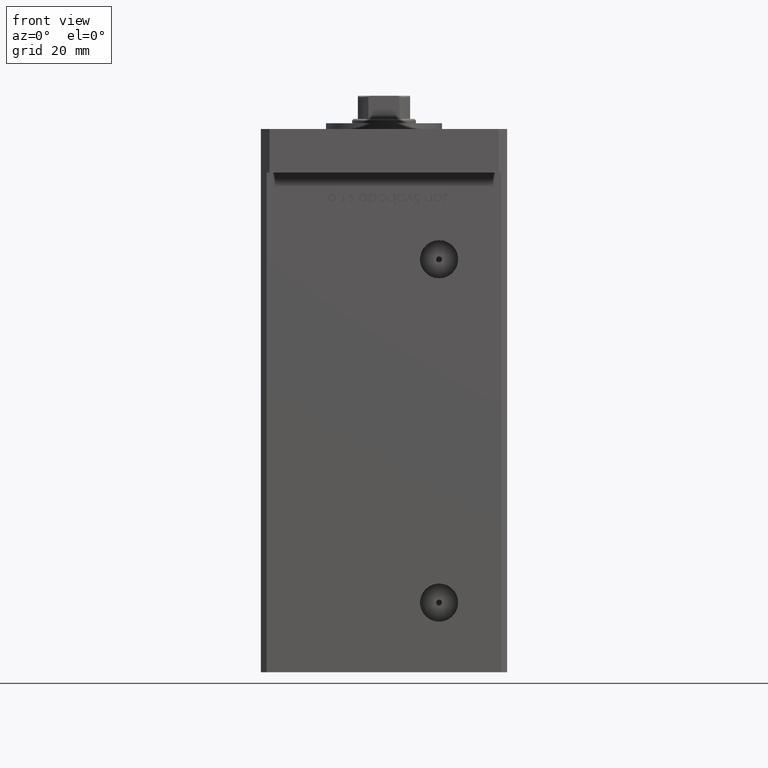
[diagram: clean part render]
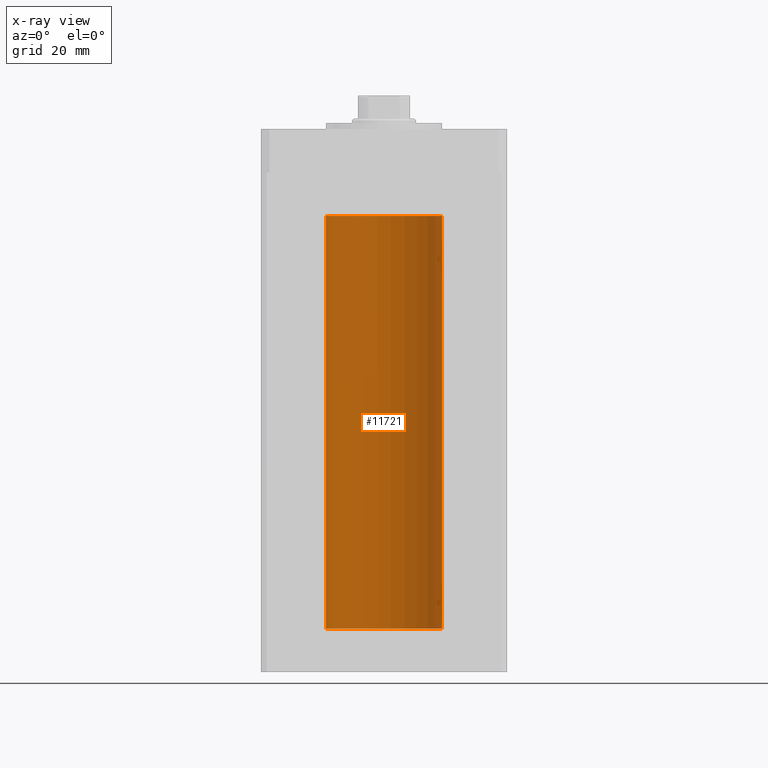
[diagram: x-ray — body ghosted, one internal face saturated and labeled with its STEP entity id]
A machine part, front view, then the same camera in x-ray: the body is ghosted and one INTERNAL B-rep face — a face not visible from any outside direction — is saturated and labeled: STEP entity #11721.
In plain terms, the highlighted cylindrical surface (partial cylindrical patch) has radius 20 mm, axis along (-0, -0, -1).
Its self-contained STEP definition (entity closure, byte-faithful):
#1046 = VECTOR ( 'NONE', #6329, 1000.000000000000000 ) ;
#1354 = FACE_OUTER_BOUND ( 'NONE', #46314, .T. ) ;
#4432 = EDGE_CURVE ( 'NONE', #5984, #25182, #39133, .T. ) ;
#5270 = CARTESIAN_POINT ( 'NONE',  ( 0.000000000000000000, 0.000000000000000000, 142.5000000000000000 ) ) ;
#5538 = DIRECTION ( 'NONE',  ( -0.000000000000000000, 0.000000000000000000, 1.000000000000000000 ) ) ;
#5984 = VERTEX_POINT ( 'NONE', #11872 ) ;
#6329 = DIRECTION ( 'NONE',  ( -0.000000000000000000, -0.000000000000000000, -1.000000000000000000 ) ) ;
#6396 = EDGE_CURVE ( 'NONE', #43133, #51250, #33474, .T. ) ;
#7317 = AXIS2_PLACEMENT_3D ( 'NONE', #14567, #10483, #33874 ) ;
#9122 = EDGE_CURVE ( 'NONE', #51250, #25182, #46217, .T. ) ;
#9600 = DIRECTION ( 'NONE',  ( 1.000000000000000000, 0.000000000000000000, 0.000000000000000000 ) ) ;
#10483 = DIRECTION ( 'NONE',  ( -0.000000000000000000, -0.000000000000000000, -1.000000000000000000 ) ) ;
#11721 = ADVANCED_FACE ( 'NONE', ( #1354 ), #31347, .F. ) ;
#11872 = CARTESIAN_POINT ( 'NONE',  ( -20.00000000000000000, 0.000000000000000000, 142.5000000000000000 ) ) ;
#11927 = ORIENTED_EDGE ( 'NONE', *, *, #4432, .T. ) ;
#12652 = CARTESIAN_POINT ( 'NONE',  ( 20.00000000000000000, 2.449293598294706513E-15, 142.5000000000000000 ) ) ;
#12889 = DIRECTION ( 'NONE',  ( -0.000000000000000000, -0.000000000000000000, -1.000000000000000000 ) ) ;
#14567 = CARTESIAN_POINT ( 'NONE',  ( 0.000000000000000000, 0.000000000000000000, 142.5000000000000000 ) ) ;
#16826 = DIRECTION ( 'NONE',  ( 1.000000000000000000, 0.000000000000000000, 0.000000000000000000 ) ) ;
#21564 = AXIS2_PLACEMENT_3D ( 'NONE', #5270, #5538, #9600 ) ;
#23365 = CARTESIAN_POINT ( 'NONE',  ( 20.00000000000000000, 2.449293598294706513E-15, 0.000000000000000000 ) ) ;
#24707 = DIRECTION ( 'NONE',  ( -0.000000000000000000, 0.000000000000000000, 1.000000000000000000 ) ) ;
#25182 = VERTEX_POINT ( 'NONE', #43816 ) ;
#27108 = VECTOR ( 'NONE', #12889, 1000.000000000000000 ) ;
#31347 = CYLINDRICAL_SURFACE ( 'NONE', #7317, 20.00000000000000000 ) ;
#32549 = CARTESIAN_POINT ( 'NONE',  ( 0.000000000000000000, 0.000000000000000000, 0.000000000000000000 ) ) ;
#33474 = LINE ( 'NONE', #42154, #27108 ) ;
#33709 = EDGE_CURVE ( 'NONE', #43133, #5984, #44917, .T. ) ;
#33874 = DIRECTION ( 'NONE',  ( -1.000000000000000000, 0.000000000000000000, 0.000000000000000000 ) ) ;
#34154 = ORIENTED_EDGE ( 'NONE', *, *, #33709, .T. ) ;
#34520 = CARTESIAN_POINT ( 'NONE',  ( -20.00000000000000000, 0.000000000000000000, 142.5000000000000000 ) ) ;
#39133 = LINE ( 'NONE', #34520, #1046 ) ;
#42154 = CARTESIAN_POINT ( 'NONE',  ( 20.00000000000000000, 2.449293598294706513E-15, 142.5000000000000000 ) ) ;
#42761 = AXIS2_PLACEMENT_3D ( 'NONE', #32549, #24707, #16826 ) ;
#43133 = VERTEX_POINT ( 'NONE', #12652 ) ;
#43816 = CARTESIAN_POINT ( 'NONE',  ( -20.00000000000000000, 0.000000000000000000, 0.000000000000000000 ) ) ;
#44917 = CIRCLE ( 'NONE', #21564, 20.00000000000000000 ) ;
#46217 = CIRCLE ( 'NONE', #42761, 20.00000000000000000 ) ;
#46314 = EDGE_LOOP ( 'NONE', ( #52055, #34154, #11927, #53471 ) ) ;
#51250 = VERTEX_POINT ( 'NONE', #23365 ) ;
#52055 = ORIENTED_EDGE ( 'NONE', *, *, #6396, .F. ) ;
#53471 = ORIENTED_EDGE ( 'NONE', *, *, #9122, .F. ) ;